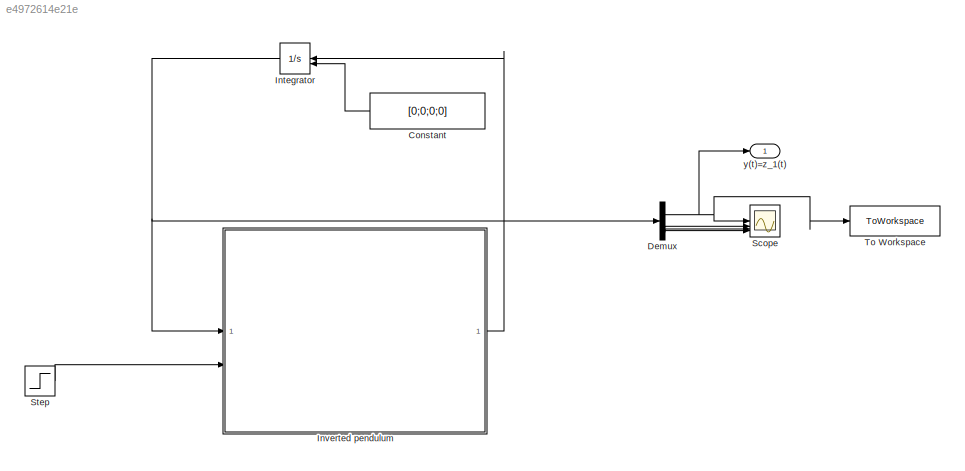
MODEL slx_e4972614e21e
KIND model
CONFIG AbsTol = auto
CONFIG EnableMultiTasking = off
CONFIG FixedStep = auto
CONFIG MaxStep = auto
CONFIG MinStep = auto
CONFIG RelTol = 1e-3
CONFIG SampleTimeConstraint = Unconstrained
CONFIG SolverName = VariableStepAuto
CONFIG StartTime = 0.0
CONFIG StopTime = 0.5
BLOCK [Constant] Constant
  NameLocation = top
  Value = [0;0;0;0]
BLOCK [Demux] Demux
BLOCK [Integrator] Integrator
  InitialConditionSource = external
  NameLocation = top
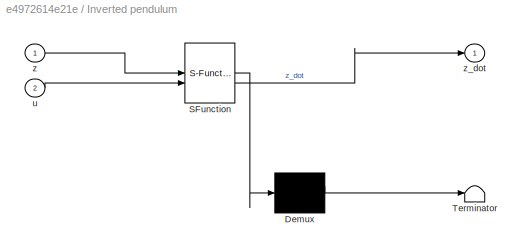
BLOCK [SubSystem] Inverted pendulum
  ErrorFcn = Stateflow.Translate.translate
  PermitHierarchicalResolution = ExplicitOnly
  SFBlockType = MATLAB Function
  TreatAsAtomicUnit = on
BLOCK [Demux] Inverted pendulum/ Demux 
  Outputs = 1
BLOCK [S-Function] Inverted pendulum/ SFunction 
  EnableBusSupport = on
  FunctionName = sf_sfun
  PortCounts = [2 2]
  SFcnIsStateOwnerBlock = off
  SFunctionDeploymentMode = off
  Tag = Stateflow S-Function 2
BLOCK [Terminator] Inverted pendulum/ Terminator 
BLOCK [Inport] Inverted pendulum/u
  Port = 2
BLOCK [Inport] Inverted pendulum/z
BLOCK [Outport] Inverted pendulum/z_dot
BLOCK [Scope] Scope
  Floating = off
  NumInputPorts = 4
  ScopeSpecificationString = Simulink.scopes.TimeScopeBlockCfg('CurrentConfiguration', extmgr.ConfigurationSet(extmgr.Configuration('Core','General UI',true),extmgr.Configuration('Core','Source UI',true),extmgr.Configuration('Sources','WiredSimulink',true),extmgr.Configuration('Visuals','Time Domain',true,'SerializedDisplays',{struct('MinYLimReal','-1.00000','MaxYLimReal','1.00000','YLabelReal','','MinYLimMag','0.00000','MaxY...<+3341ch>
BLOCK [Step] Step
  SampleTime = 0
BLOCK [ToWorkspace] To Workspace
  FixptAsFi = on
  MaxDataPoints = inf
  SampleTime = -1
  SaveFormat = Timeseries
  VariableName = x_nonlinear
BLOCK [Outport] y(t)=z_1(t)
LINE Constant:1 -> Integrator:2
NET Demux:1 -> Scope:1, To Workspace:1, y(t)=z_1(t):1
LINE Demux:2 -> Scope:2
LINE Demux:3 -> Scope:3
LINE Demux:4 -> Scope:4
NET Integrator:1 -> Demux:1, Inverted pendulum:1
LINE Inverted pendulum:1 -> Integrator:1
LINE Step:1 -> Inverted pendulum:2
note: NET lines group one-source signal fan-out (src -> all destinations, sorted); 1:1 wires keep LINE
CHART Inverted pendulum states=1 transitions=1
  STATE_LABEL 'eML_blk_kernel()'
  STATE_LABEL 'SCRIPT:\nfunction z_dot = inverted_pendulum(z, u)\n    % Parameters\n    M = 2;      % Mass of the cart [kg]\n    m = 0.5;    % Mass of the pendulum [kg]\n    b = 0.1;    % Friction coefficient [N·s/m]\n    L = 0.3;    % Length of the pendulum [m]\n    g = 9.81;   % Gravitational acceleration [m/s^2]\n\n    % State variables\n    z1 = z(1); % x (cart position)\n    z2 = z(2); % x_dot (cart velocity)\n    z3 =...<+839ch>'
CHART  states=0 transitions=0
